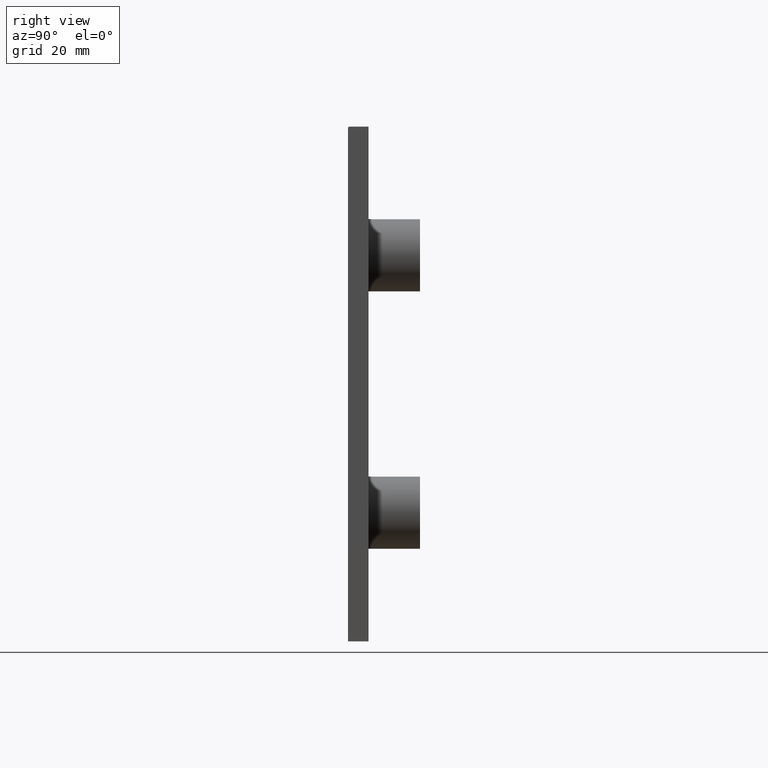
[diagram: clean part render]
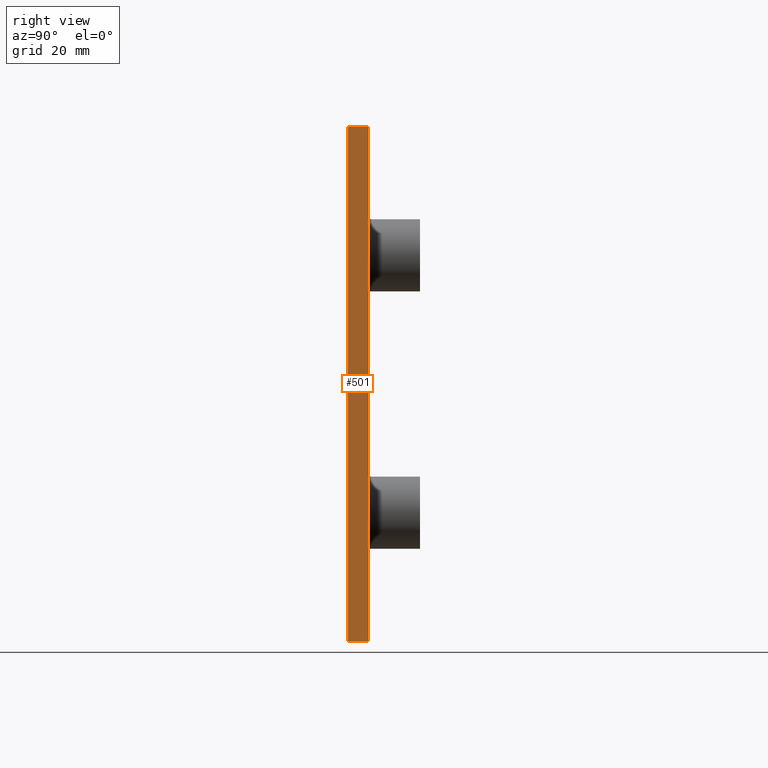
[diagram: same view with one face highlighted and labeled with its STEP entity id]
A machine part, right view. The second image highlights one B-rep face of the part: STEP entity #501.
In plain terms, the highlighted planar face has unit normal (-1, 0, 0).
Its self-contained STEP definition (entity closure, byte-faithful):
#24 = PLANE ( 'NONE',  #551 ) ;
#53 = CARTESIAN_POINT ( 'NONE',  ( 49.99999999999999300, 4.000000000000000000, -50.00000000000000000 ) ) ;
#59 = DIRECTION ( 'NONE',  ( -1.000000000000000000, 0.0000000000000000000, 0.0000000000000000000 ) ) ;
#67 = DIRECTION ( 'NONE',  ( 0.0000000000000000000, 0.0000000000000000000, 1.000000000000000000 ) ) ;
#98 = VERTEX_POINT ( 'NONE', #135 ) ;
#100 = VERTEX_POINT ( 'NONE', #173 ) ;
#101 = VERTEX_POINT ( 'NONE', #144 ) ;
#111 = VERTEX_POINT ( 'NONE', #147 ) ;
#112 = VERTEX_POINT ( 'NONE', #150 ) ;
#135 = CARTESIAN_POINT ( 'NONE',  ( 49.99999999999999300, 0.0000000000000000000, -50.00000000000000000 ) ) ;
#144 = CARTESIAN_POINT ( 'NONE',  ( 49.99999999999999300, 4.000000000000000000, 49.99999999999997900 ) ) ;
#147 = CARTESIAN_POINT ( 'NONE',  ( 49.99999999999999300, 0.0000000000000000000, 49.74999999999997200 ) ) ;
#149 = DIRECTION ( 'NONE',  ( -0.0000000000000000000, -1.000000000000000000, -0.0000000000000000000 ) ) ;
#150 = CARTESIAN_POINT ( 'NONE',  ( 49.99999999999999300, 0.2500000000000002200, 49.99999999999997900 ) ) ;
#173 = CARTESIAN_POINT ( 'NONE',  ( 49.99999999999999300, 4.000000000000000000, -50.00000000000000000 ) ) ;
#175 = CARTESIAN_POINT ( 'NONE',  ( 49.99999999999999300, 4.000000000000000000, 49.99999999999997900 ) ) ;
#211 = ORIENTED_EDGE ( 'NONE', *, *, #847, .T. ) ;
#231 = ORIENTED_EDGE ( 'NONE', *, *, #475, .T. ) ;
#236 = ORIENTED_EDGE ( 'NONE', *, *, #510, .F. ) ;
#259 = ORIENTED_EDGE ( 'NONE', *, *, #509, .T. ) ;
#264 = ORIENTED_EDGE ( 'NONE', *, *, #842, .F. ) ;
#282 = DIRECTION ( 'NONE',  ( -0.0000000000000000000, -0.0000000000000000000, -1.000000000000000000 ) ) ;
#283 = CARTESIAN_POINT ( 'NONE',  ( 49.99999999999999300, 4.000000000000000000, -50.00000000000000000 ) ) ;
#311 = DIRECTION ( 'NONE',  ( -0.0000000000000000000, -1.000000000000000000, -0.0000000000000000000 ) ) ;
#315 = CARTESIAN_POINT ( 'NONE',  ( 49.99999999999999300, 0.0000000000000000000, -50.00000000000000000 ) ) ;
#364 = EDGE_LOOP ( 'NONE', ( #231, #211, #259, #236, #264 ) ) ;
#475 = EDGE_CURVE ( 'NONE', #101, #112, #632, .T. ) ;
#501 = ADVANCED_FACE ( 'NONE', ( #679 ), #24, .F. ) ;
#509 = EDGE_CURVE ( 'NONE', #111, #98, #690, .T. ) ;
#510 = EDGE_CURVE ( 'NONE', #100, #98, #692, .T. ) ;
#551 = AXIS2_PLACEMENT_3D ( 'NONE', #53, #59, #67 ) ;
#575 = AXIS2_PLACEMENT_3D ( 'NONE', #849, #850, #871 ) ;
#632 = LINE ( 'NONE', #175, #633 ) ;
#633 = VECTOR ( 'NONE', #149, 1000.000000000000000 ) ;
#679 = FACE_OUTER_BOUND ( 'NONE', #364, .T. ) ;
#690 = LINE ( 'NONE', #315, #691 ) ;
#691 = VECTOR ( 'NONE', #282, 1000.000000000000000 ) ;
#692 = LINE ( 'NONE', #283, #693 ) ;
#693 = VECTOR ( 'NONE', #311, 1000.000000000000000 ) ;
#723 = LINE ( 'NONE', #859, #724 ) ;
#724 = VECTOR ( 'NONE', #864, 1000.000000000000000 ) ;
#728 = CIRCLE ( 'NONE', #575, 0.2500000000000002200 ) ;
#842 = EDGE_CURVE ( 'NONE', #101, #100, #723, .T. ) ;
#847 = EDGE_CURVE ( 'NONE', #112, #111, #728, .T. ) ;
#849 = CARTESIAN_POINT ( 'NONE',  ( 49.99999999999999300, 0.2500000000000002200, 49.74999999999997900 ) ) ;
#850 = DIRECTION ( 'NONE',  ( 1.000000000000000000, -0.0000000000000000000, -0.0000000000000000000 ) ) ;
#859 = CARTESIAN_POINT ( 'NONE',  ( 49.99999999999999300, 4.000000000000000000, -50.00000000000000000 ) ) ;
#864 = DIRECTION ( 'NONE',  ( -0.0000000000000000000, -0.0000000000000000000, -1.000000000000000000 ) ) ;
#871 = DIRECTION ( 'NONE',  ( 0.0000000000000000000, 0.0000000000000000000, 1.000000000000000000 ) ) ;